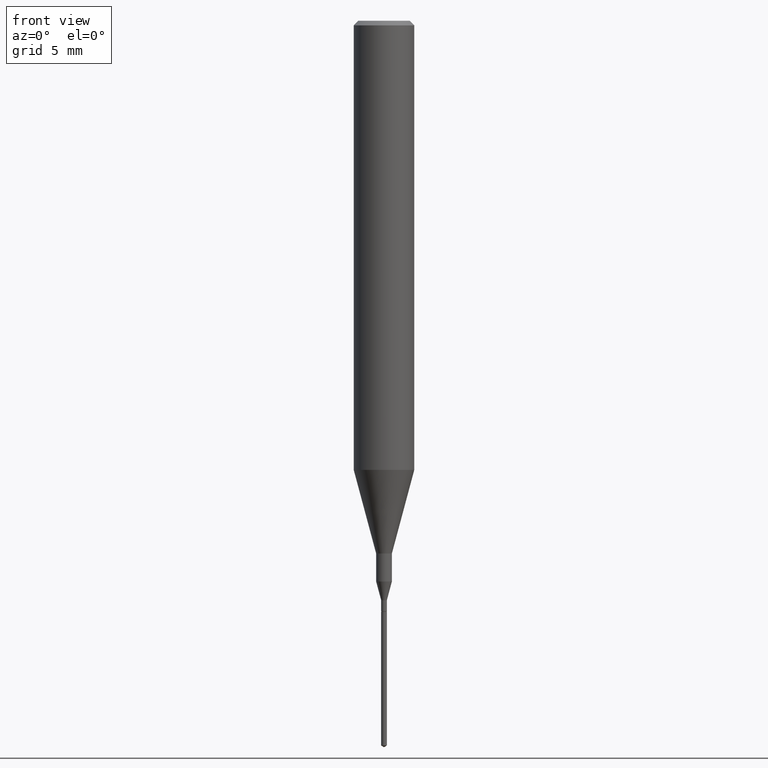
[diagram: clean part render]
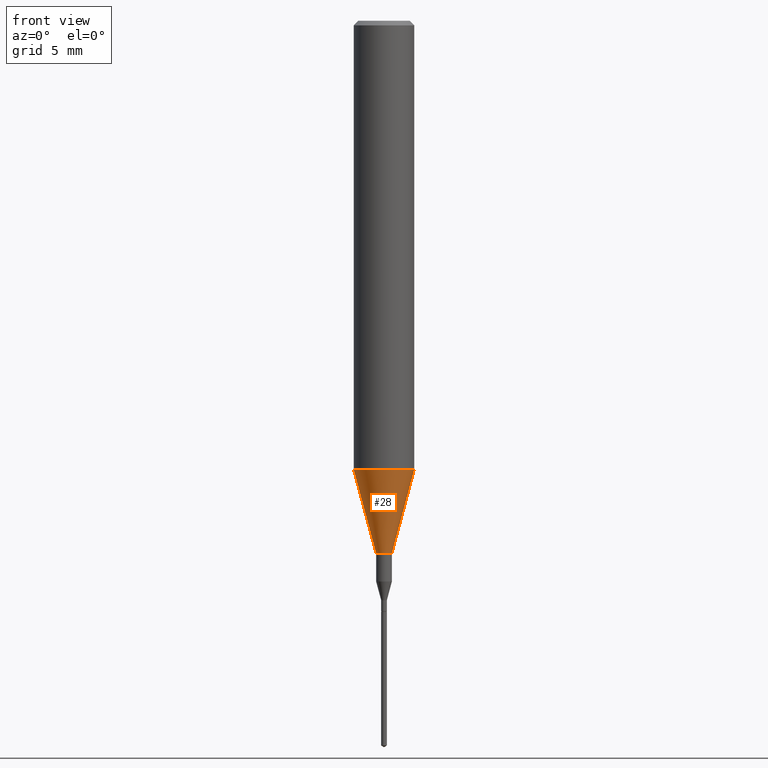
[diagram: same view with one face highlighted and labeled with its STEP entity id]
A machine part, front view. The second image highlights one B-rep face of the part: STEP entity #28.
In plain terms, the highlighted conical surface has half-angle 15 deg.
Its self-contained STEP definition (entity closure, byte-faithful):
#12 = DIRECTION ( 'NONE',  ( -2.445468806185136597E-29, 3.491481338843145583E-15, 1.000000000000000000 ) ) ;
#21 = VERTEX_POINT ( 'NONE', #37 ) ;
#24 = EDGE_LOOP ( 'NONE', ( #259, #210, #442, #127 ) ) ;
#28 = ADVANCED_FACE ( 'NONE', ( #503 ), #134, .T. ) ;
#37 = CARTESIAN_POINT ( 'NONE',  ( 0.01624999999999999709, -3.954102616239861778E-15, -1.100000000000000089 ) ) ;
#86 = CARTESIAN_POINT ( 'NONE',  ( -0.06250000000000011102, -2.793884921928740709E-15, -0.9273926501499395458 ) ) ;
#101 = CARTESIAN_POINT ( 'NONE',  ( 0.06250000000000011102, -3.674409299134196572E-15, -0.9273926501499395458 ) ) ;
#127 = ORIENTED_EDGE ( 'NONE', *, *, #515, .F. ) ;
#133 = DIRECTION ( 'NONE',  ( 1.000000000000000000, -6.982962677686259611E-15, 0.000000000000000000 ) ) ;
#134 = CONICAL_SURFACE ( 'NONE', #398, 0.06250000000000011102, 0.2617993877991501850 ) ;
#142 = CARTESIAN_POINT ( 'NONE',  ( 2.267909797027042920E-29, -3.237974131778804114E-15, -0.9273926501499395458 ) ) ;
#143 = LINE ( 'NONE', #334, #276 ) ;
#158 = VECTOR ( 'NONE', #474, 39.37007874015748143 ) ;
#160 = CARTESIAN_POINT ( 'NONE',  ( 2.267909797027042920E-29, -3.237974131778804114E-15, -0.9273926501499395458 ) ) ;
#207 = VERTEX_POINT ( 'NONE', #101 ) ;
#210 = ORIENTED_EDGE ( 'NONE', *, *, #373, .T. ) ;
#222 = VERTEX_POINT ( 'NONE', #329 ) ;
#235 = AXIS2_PLACEMENT_3D ( 'NONE', #160, #522, #308 ) ;
#248 = EDGE_CURVE ( 'NONE', #222, #528, #143, .T. ) ;
#259 = ORIENTED_EDGE ( 'NONE', *, *, #248, .F. ) ;
#273 = CARTESIAN_POINT ( 'NONE',  ( 2.690015686803650369E-29, -3.840629472727460101E-15, -1.100000000000000089 ) ) ;
#276 = VECTOR ( 'NONE', #432, 39.37007874015748143 ) ;
#308 = DIRECTION ( 'NONE',  ( 1.000000000000000000, -6.982962677686265922E-15, 0.000000000000000000 ) ) ;
#329 = CARTESIAN_POINT ( 'NONE',  ( -0.01624999999999999709, -3.826023432441185262E-15, -1.100000000000000089 ) ) ;
#333 = DIRECTION ( 'NONE',  ( 1.000000000000000000, -6.982962677686265922E-15, 0.000000000000000000 ) ) ;
#334 = CARTESIAN_POINT ( 'NONE',  ( -0.06250000000000011102, -2.793884921928740709E-15, -0.9273926501499395458 ) ) ;
#345 = AXIS2_PLACEMENT_3D ( 'NONE', #273, #370, #133 ) ;
#370 = DIRECTION ( 'NONE',  ( -2.445468806185136597E-29, 3.491481338843145583E-15, 1.000000000000000000 ) ) ;
#373 = EDGE_CURVE ( 'NONE', #222, #21, #449, .T. ) ;
#398 = AXIS2_PLACEMENT_3D ( 'NONE', #142, #12, #333 ) ;
#432 = DIRECTION ( 'NONE',  ( -0.2588190451025214611, 5.211531920934550253E-15, 0.9659258262890679791 ) ) ;
#442 = ORIENTED_EDGE ( 'NONE', *, *, #499, .T. ) ;
#449 = CIRCLE ( 'NONE', #345, 0.01624999999999999709 ) ;
#474 = DIRECTION ( 'NONE',  ( 0.2588190451025214611, 1.565188264969620982E-15, 0.9659258262890679791 ) ) ;
#492 = CIRCLE ( 'NONE', #235, 0.06250000000000011102 ) ;
#499 = EDGE_CURVE ( 'NONE', #21, #207, #518, .T. ) ;
#503 = FACE_OUTER_BOUND ( 'NONE', #24, .T. ) ;
#515 = EDGE_CURVE ( 'NONE', #528, #207, #492, .T. ) ;
#518 = LINE ( 'NONE', #569, #158 ) ;
#522 = DIRECTION ( 'NONE',  ( -2.445468806185136597E-29, 3.491481338843145583E-15, 1.000000000000000000 ) ) ;
#528 = VERTEX_POINT ( 'NONE', #86 ) ;
#569 = CARTESIAN_POINT ( 'NONE',  ( 0.06250000000000011102, -3.674409299134196572E-15, -0.9273926501499395458 ) ) ;